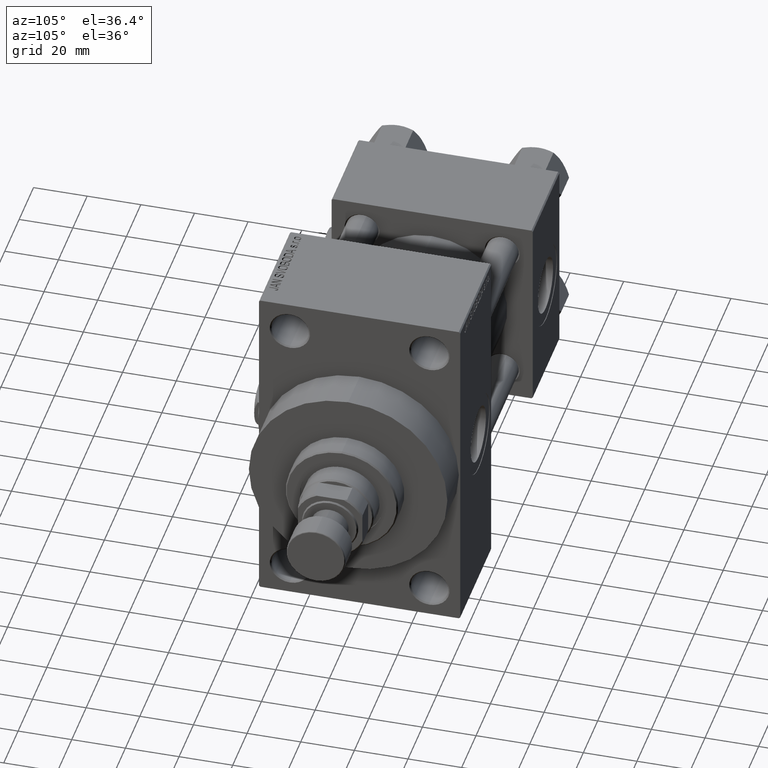
[diagram: clean part render]
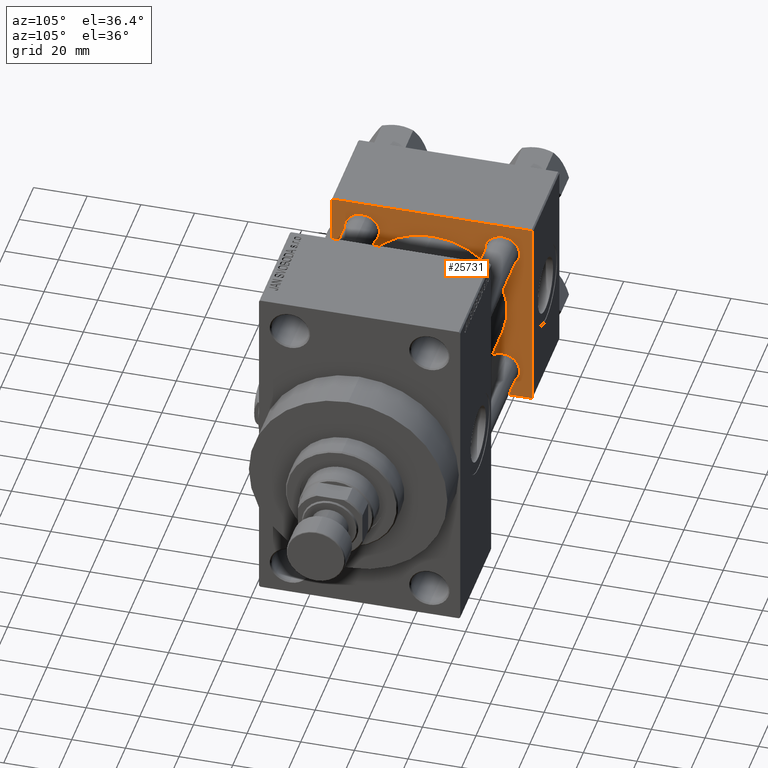
[diagram: same view with one face highlighted and labeled with its STEP entity id]
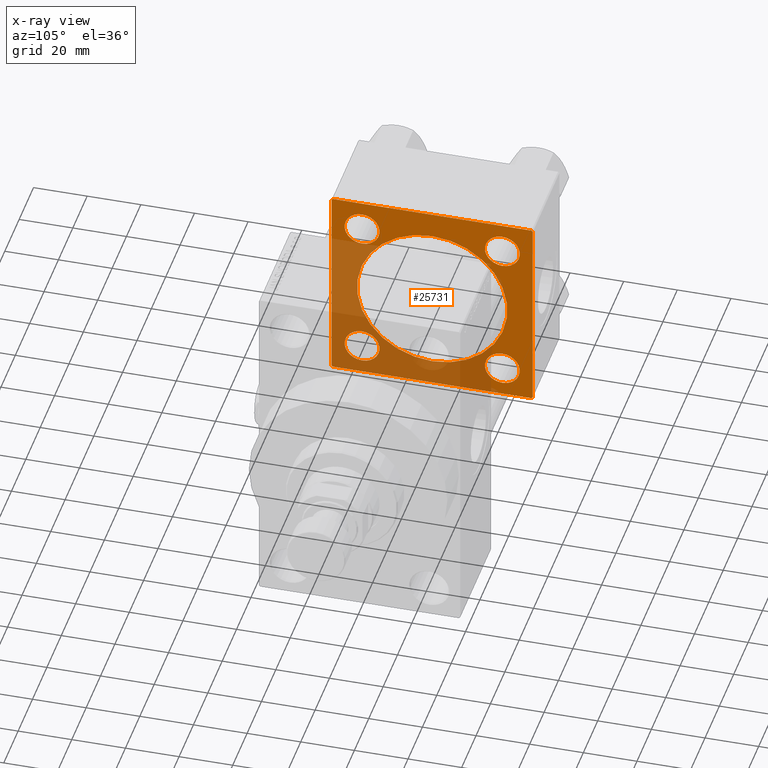
[diagram: x-ray of the same camera — body ghosted, the highlighted face saturated]
A machine part, auxiliary view. The second image highlights one B-rep face of the part: STEP entity #25731.
The next image is the same camera in x-ray: the body ghosted, the highlighted face saturated — about 44% of this face is hidden behind the body in this view.
In plain terms, the highlighted planar face has unit normal (-1, 0, 0).
Its self-contained STEP definition (entity closure, byte-faithful):
#28 = DIRECTION ( 'NONE',  ( 0.000000000000000000, 0.000000000000000000, 1.000000000000000000 ) ) ;
#78 = ORIENTED_EDGE ( 'NONE', *, *, #10707, .T. ) ;
#193 = VERTEX_POINT ( 'NONE', #20926 ) ;
#374 = VECTOR ( 'NONE', #31407, 1000.000000000000000 ) ;
#1190 = CARTESIAN_POINT ( 'NONE',  ( 37.00000000000000000, -26.14999999999999147, -26.15000000000000924 ) ) ;
#2175 = CARTESIAN_POINT ( 'NONE',  ( 37.00000000000000000, -26.14999999999999147, 19.64999999999994529 ) ) ;
#2512 = FACE_BOUND ( 'NONE', #25449, .T. ) ;
#2798 = CIRCLE ( 'NONE', #9199, 6.500000000000002665 ) ;
#2936 = EDGE_CURVE ( 'NONE', #27502, #19138, #23451, .T. ) ;
#3660 = EDGE_CURVE ( 'NONE', #13550, #10630, #48383, .T. ) ;
#3735 = CARTESIAN_POINT ( 'NONE',  ( 37.00000000000000000, 0.000000000000000000, 0.000000000000000000 ) ) ;
#3979 = FACE_BOUND ( 'NONE', #37839, .T. ) ;
#4099 = CARTESIAN_POINT ( 'NONE',  ( 37.00000000000000000, 36.99999999999997868, -37.50000000000000000 ) ) ;
#4154 = CARTESIAN_POINT ( 'NONE',  ( 37.00000000000000000, -37.00000000000002132, -37.50000000000000711 ) ) ;
#4182 = CIRCLE ( 'NONE', #41135, 28.00000000000000000 ) ;
#4608 = DIRECTION ( 'NONE',  ( 0.000000000000000000, 0.000000000000000000, -1.000000000000000000 ) ) ;
#4701 = EDGE_CURVE ( 'NONE', #36920, #22623, #48905, .T. ) ;
#4990 = DIRECTION ( 'NONE',  ( -0.000000000000000000, 0.7071067811865474617, 0.7071067811865474617 ) ) ;
#5186 = ORIENTED_EDGE ( 'NONE', *, *, #19291, .F. ) ;
#5329 = ORIENTED_EDGE ( 'NONE', *, *, #38139, .T. ) ;
#5738 = CIRCLE ( 'NONE', #30598, 28.00000000000000000 ) ;
#5908 = CARTESIAN_POINT ( 'NONE',  ( 37.00000000000000000, -37.50000000000000711, 36.99999999999999289 ) ) ;
#6911 = EDGE_LOOP ( 'NONE', ( #26663, #31911, #5186, #10807, #39083, #35533, #46557, #78 ) ) ;
#7548 = ORIENTED_EDGE ( 'NONE', *, *, #31475, .T. ) ;
#8831 = ORIENTED_EDGE ( 'NONE', *, *, #42212, .T. ) ;
#9199 = AXIS2_PLACEMENT_3D ( 'NONE', #31308, #46652, #38374 ) ;
#9416 = DIRECTION ( 'NONE',  ( 0.000000000000000000, 0.000000000000000000, 1.000000000000000000 ) ) ;
#9926 = AXIS2_PLACEMENT_3D ( 'NONE', #15358, #41554, #45799 ) ;
#9987 = VERTEX_POINT ( 'NONE', #32030 ) ;
#10630 = VERTEX_POINT ( 'NONE', #30065 ) ;
#10707 = EDGE_CURVE ( 'NONE', #36265, #28152, #17425, .T. ) ;
#10788 = FACE_BOUND ( 'NONE', #46650, .T. ) ;
#10807 = ORIENTED_EDGE ( 'NONE', *, *, #2936, .T. ) ;
#10817 = DIRECTION ( 'NONE',  ( 1.000000000000000000, -0.000000000000000000, 0.000000000000000000 ) ) ;
#11246 = CIRCLE ( 'NONE', #24123, 6.500000000000057732 ) ;
#11982 = DIRECTION ( 'NONE',  ( 0.000000000000000000, 0.000000000000000000, 1.000000000000000000 ) ) ;
#12075 = CARTESIAN_POINT ( 'NONE',  ( 37.00000000000000000, -2.602085213965210642E-15, 0.000000000000000000 ) ) ;
#13451 = ORIENTED_EDGE ( 'NONE', *, *, #29246, .T. ) ;
#13512 = CARTESIAN_POINT ( 'NONE',  ( 37.00000000000000000, 37.49999999999999289, -36.99999999999998579 ) ) ;
#13550 = VERTEX_POINT ( 'NONE', #2175 ) ;
#14151 = VERTEX_POINT ( 'NONE', #22404 ) ;
#14155 = DIRECTION ( 'NONE',  ( 0.000000000000000000, 9.251858538542971581E-17, -1.000000000000000000 ) ) ;
#14398 = CARTESIAN_POINT ( 'NONE',  ( 37.00000000000000000, -37.50000000000000711, 37.49999999999999289 ) ) ;
#14439 = DIRECTION ( 'NONE',  ( -0.000000000000000000, -0.7071067811865474617, -0.7071067811865474617 ) ) ;
#14592 = CARTESIAN_POINT ( 'NONE',  ( 37.00000000000000000, -2.602085213965210642E-15, 0.000000000000000000 ) ) ;
#14927 = CIRCLE ( 'NONE', #37393, 6.500000000000057732 ) ;
#15358 = CARTESIAN_POINT ( 'NONE',  ( 37.00000000000000000, -26.14999999999999147, 26.15000000000000924 ) ) ;
#15362 = EDGE_CURVE ( 'NONE', #9987, #48597, #11246, .T. ) ;
#16094 = EDGE_CURVE ( 'NONE', #19138, #36920, #26382, .T. ) ;
#16202 = VECTOR ( 'NONE', #4990, 1000.000000000000114 ) ;
#16382 = DIRECTION ( 'NONE',  ( -1.000000000000000000, 0.000000000000000000, -0.000000000000000000 ) ) ;
#16518 = DIRECTION ( 'NONE',  ( -1.000000000000000000, 0.000000000000000000, -0.000000000000000000 ) ) ;
#16725 = EDGE_CURVE ( 'NONE', #26696, #34529, #5738, .T. ) ;
#16859 = CARTESIAN_POINT ( 'NONE',  ( 37.00000000000000000, 26.14999999999999858, 26.15000000000000213 ) ) ;
#17080 = VECTOR ( 'NONE', #14439, 1000.000000000000114 ) ;
#17425 = LINE ( 'NONE', #44078, #39223 ) ;
#17695 = EDGE_CURVE ( 'NONE', #22623, #36265, #33268, .T. ) ;
#17783 = CARTESIAN_POINT ( 'NONE',  ( 37.00000000000000000, -2.602085213965210642E-15, 28.00000000000000000 ) ) ;
#18826 = EDGE_CURVE ( 'NONE', #34529, #26696, #4182, .T. ) ;
#19138 = VERTEX_POINT ( 'NONE', #21835 ) ;
#19291 = EDGE_CURVE ( 'NONE', #27502, #37601, #31011, .T. ) ;
#19683 = CARTESIAN_POINT ( 'NONE',  ( 37.00000000000000000, 36.99999999999999289, 37.50000000000000000 ) ) ;
#19689 = CARTESIAN_POINT ( 'NONE',  ( 37.00000000000000000, -37.00000000000000711, 37.49999999999999289 ) ) ;
#19930 = DIRECTION ( 'NONE',  ( 0.000000000000000000, -0.7071067811865474617, 0.7071067811865474617 ) ) ;
#20352 = CIRCLE ( 'NONE', #9926, 6.500000000000064837 ) ;
#20546 = EDGE_CURVE ( 'NONE', #32265, #48975, #24329, .T. ) ;
#20926 = CARTESIAN_POINT ( 'NONE',  ( 37.00000000000000000, 26.14999999999999858, -19.65000000000000213 ) ) ;
#20932 = CARTESIAN_POINT ( 'NONE',  ( 37.00000000000000000, 8.269258236473776482E-16, -28.00000000000000000 ) ) ;
#21688 = EDGE_CURVE ( 'NONE', #28458, #37601, #30895, .T. ) ;
#21835 = CARTESIAN_POINT ( 'NONE',  ( 37.00000000000000000, 36.99999999999999289, 37.50000000000000000 ) ) ;
#21855 = VECTOR ( 'NONE', #4608, 1000.000000000000000 ) ;
#22404 = CARTESIAN_POINT ( 'NONE',  ( 37.00000000000000000, 26.14999999999999858, -32.65000000000000568 ) ) ;
#22623 = VERTEX_POINT ( 'NONE', #39782 ) ;
#22640 = DIRECTION ( 'NONE',  ( 0.000000000000000000, 0.000000000000000000, 1.000000000000000000 ) ) ;
#22845 = DIRECTION ( 'NONE',  ( 0.000000000000000000, -1.000000000000000000, -9.251858538542971581E-17 ) ) ;
#23145 = CARTESIAN_POINT ( 'NONE',  ( 37.00000000000000000, 37.49999999999999289, -37.50000000000000000 ) ) ;
#23451 = LINE ( 'NONE', #19683, #35482 ) ;
#24034 = EDGE_LOOP ( 'NONE', ( #8831, #7548 ) ) ;
#24123 = AXIS2_PLACEMENT_3D ( 'NONE', #1190, #16518, #11982 ) ;
#24212 = DIRECTION ( 'NONE',  ( 0.000000000000000000, 0.000000000000000000, 1.000000000000000000 ) ) ;
#24329 = CIRCLE ( 'NONE', #34647, 6.500000000000002665 ) ;
#24434 = EDGE_LOOP ( 'NONE', ( #34735, #13451 ) ) ;
#25449 = EDGE_LOOP ( 'NONE', ( #43963, #40443 ) ) ;
#25731 = ADVANCED_FACE ( 'NONE', ( #2512, #33920, #10788, #37705, #3979, #46224 ), #41488, .F. ) ;
#26328 = CARTESIAN_POINT ( 'NONE',  ( 37.00000000000000000, -37.50000000000000000, -37.00000000000003553 ) ) ;
#26382 = LINE ( 'NONE', #29893, #31379 ) ;
#26636 = DIRECTION ( 'NONE',  ( -1.000000000000000000, 0.000000000000000000, -0.000000000000000000 ) ) ;
#26663 = ORIENTED_EDGE ( 'NONE', *, *, #43631, .F. ) ;
#26696 = VERTEX_POINT ( 'NONE', #17783 ) ;
#27502 = VERTEX_POINT ( 'NONE', #37035 ) ;
#27891 = CARTESIAN_POINT ( 'NONE',  ( 37.00000000000000000, 37.49999999999999289, -36.99999999999998579 ) ) ;
#27986 = CARTESIAN_POINT ( 'NONE',  ( 37.00000000000000000, -26.14999999999999147, 26.15000000000000924 ) ) ;
#28152 = VERTEX_POINT ( 'NONE', #4154 ) ;
#28458 = VERTEX_POINT ( 'NONE', #4099 ) ;
#28830 = DIRECTION ( 'NONE',  ( 0.000000000000000000, 0.000000000000000000, 1.000000000000000000 ) ) ;
#29106 = AXIS2_PLACEMENT_3D ( 'NONE', #27986, #39539, #24212 ) ;
#29181 = AXIS2_PLACEMENT_3D ( 'NONE', #3735, #26636, #34413 ) ;
#29246 = EDGE_CURVE ( 'NONE', #48975, #32265, #2798, .T. ) ;
#29282 = CARTESIAN_POINT ( 'NONE',  ( 37.00000000000000000, 26.14999999999999858, -26.15000000000000213 ) ) ;
#29893 = CARTESIAN_POINT ( 'NONE',  ( 37.00000000000000000, 37.49999999999999289, 37.50000000000000000 ) ) ;
#30065 = CARTESIAN_POINT ( 'NONE',  ( 37.00000000000000000, -26.14999999999999147, 32.65000000000007674 ) ) ;
#30151 = CIRCLE ( 'NONE', #42991, 6.500000000000002665 ) ;
#30598 = AXIS2_PLACEMENT_3D ( 'NONE', #12075, #38264, #28 ) ;
#30895 = LINE ( 'NONE', #27891, #16202 ) ;
#31011 = LINE ( 'NONE', #42093, #21855 ) ;
#31268 = ORIENTED_EDGE ( 'NONE', *, *, #16725, .F. ) ;
#31308 = CARTESIAN_POINT ( 'NONE',  ( 37.00000000000000000, 26.14999999999999858, 26.15000000000000213 ) ) ;
#31379 = VECTOR ( 'NONE', #22845, 1000.000000000000000 ) ;
#31407 = DIRECTION ( 'NONE',  ( 0.000000000000000000, -1.000000000000000000, -9.251858538542972814E-17 ) ) ;
#31475 = EDGE_CURVE ( 'NONE', #193, #14151, #38245, .T. ) ;
#31911 = ORIENTED_EDGE ( 'NONE', *, *, #21688, .T. ) ;
#32030 = CARTESIAN_POINT ( 'NONE',  ( 37.00000000000000000, -26.14999999999999147, -19.64999999999995239 ) ) ;
#32194 = DIRECTION ( 'NONE',  ( -1.000000000000000000, 0.000000000000000000, -0.000000000000000000 ) ) ;
#32265 = VERTEX_POINT ( 'NONE', #38835 ) ;
#33268 = LINE ( 'NONE', #14398, #41098 ) ;
#33920 = FACE_BOUND ( 'NONE', #24034, .T. ) ;
#34413 = DIRECTION ( 'NONE',  ( -0.000000000000000000, 0.000000000000000000, 1.000000000000000000 ) ) ;
#34529 = VERTEX_POINT ( 'NONE', #20932 ) ;
#34647 = AXIS2_PLACEMENT_3D ( 'NONE', #16859, #32194, #40238 ) ;
#34735 = ORIENTED_EDGE ( 'NONE', *, *, #20546, .T. ) ;
#35482 = VECTOR ( 'NONE', #19930, 1000.000000000000114 ) ;
#35533 = ORIENTED_EDGE ( 'NONE', *, *, #4701, .T. ) ;
#35966 = CARTESIAN_POINT ( 'NONE',  ( 37.00000000000000000, -26.14999999999999147, -32.65000000000006963 ) ) ;
#36265 = VERTEX_POINT ( 'NONE', #26328 ) ;
#36920 = VERTEX_POINT ( 'NONE', #19689 ) ;
#37035 = CARTESIAN_POINT ( 'NONE',  ( 37.00000000000000000, 37.49999999999999289, 37.00000000000000000 ) ) ;
#37393 = AXIS2_PLACEMENT_3D ( 'NONE', #43297, #16382, #39267 ) ;
#37426 = AXIS2_PLACEMENT_3D ( 'NONE', #29282, #43873, #9416 ) ;
#37601 = VERTEX_POINT ( 'NONE', #13512 ) ;
#37705 = FACE_BOUND ( 'NONE', #24434, .T. ) ;
#37839 = EDGE_LOOP ( 'NONE', ( #31268, #49577 ) ) ;
#38122 = ORIENTED_EDGE ( 'NONE', *, *, #3660, .T. ) ;
#38139 = EDGE_CURVE ( 'NONE', #10630, #13550, #20352, .T. ) ;
#38245 = CIRCLE ( 'NONE', #37426, 6.500000000000002665 ) ;
#38264 = DIRECTION ( 'NONE',  ( 1.000000000000000000, -0.000000000000000000, 0.000000000000000000 ) ) ;
#38374 = DIRECTION ( 'NONE',  ( 0.000000000000000000, 0.000000000000000000, 1.000000000000000000 ) ) ;
#38835 = CARTESIAN_POINT ( 'NONE',  ( 37.00000000000000000, 26.14999999999999858, 19.64999999999999858 ) ) ;
#39083 = ORIENTED_EDGE ( 'NONE', *, *, #16094, .T. ) ;
#39223 = VECTOR ( 'NONE', #48347, 1000.000000000000000 ) ;
#39267 = DIRECTION ( 'NONE',  ( 0.000000000000000000, 0.000000000000000000, 1.000000000000000000 ) ) ;
#39539 = DIRECTION ( 'NONE',  ( -1.000000000000000000, 0.000000000000000000, -0.000000000000000000 ) ) ;
#39782 = CARTESIAN_POINT ( 'NONE',  ( 37.00000000000000000, -37.50000000000000711, 36.99999999999999289 ) ) ;
#40238 = DIRECTION ( 'NONE',  ( 0.000000000000000000, 0.000000000000000000, 1.000000000000000000 ) ) ;
#40443 = ORIENTED_EDGE ( 'NONE', *, *, #15362, .T. ) ;
#41098 = VECTOR ( 'NONE', #14155, 1000.000000000000000 ) ;
#41135 = AXIS2_PLACEMENT_3D ( 'NONE', #14592, #10817, #22640 ) ;
#41488 = PLANE ( 'NONE',  #29181 ) ;
#41554 = DIRECTION ( 'NONE',  ( -1.000000000000000000, 0.000000000000000000, -0.000000000000000000 ) ) ;
#42093 = CARTESIAN_POINT ( 'NONE',  ( 37.00000000000000000, 37.49999999999999289, 37.50000000000000000 ) ) ;
#42212 = EDGE_CURVE ( 'NONE', #14151, #193, #30151, .T. ) ;
#42250 = LINE ( 'NONE', #23145, #374 ) ;
#42549 = EDGE_CURVE ( 'NONE', #48597, #9987, #14927, .T. ) ;
#42991 = AXIS2_PLACEMENT_3D ( 'NONE', #43913, #44399, #28830 ) ;
#43297 = CARTESIAN_POINT ( 'NONE',  ( 37.00000000000000000, -26.14999999999999147, -26.15000000000000924 ) ) ;
#43332 = CARTESIAN_POINT ( 'NONE',  ( 37.00000000000000000, 26.14999999999999858, 32.65000000000001279 ) ) ;
#43631 = EDGE_CURVE ( 'NONE', #28458, #28152, #42250, .T. ) ;
#43873 = DIRECTION ( 'NONE',  ( -1.000000000000000000, 0.000000000000000000, -0.000000000000000000 ) ) ;
#43913 = CARTESIAN_POINT ( 'NONE',  ( 37.00000000000000000, 26.14999999999999858, -26.15000000000000213 ) ) ;
#43963 = ORIENTED_EDGE ( 'NONE', *, *, #42549, .T. ) ;
#44078 = CARTESIAN_POINT ( 'NONE',  ( 37.00000000000000000, -37.00000000000002132, -37.50000000000000711 ) ) ;
#44399 = DIRECTION ( 'NONE',  ( -1.000000000000000000, 0.000000000000000000, -0.000000000000000000 ) ) ;
#45799 = DIRECTION ( 'NONE',  ( 0.000000000000000000, 0.000000000000000000, 1.000000000000000000 ) ) ;
#46224 = FACE_OUTER_BOUND ( 'NONE', #6911, .T. ) ;
#46557 = ORIENTED_EDGE ( 'NONE', *, *, #17695, .T. ) ;
#46650 = EDGE_LOOP ( 'NONE', ( #38122, #5329 ) ) ;
#46652 = DIRECTION ( 'NONE',  ( -1.000000000000000000, 0.000000000000000000, -0.000000000000000000 ) ) ;
#48347 = DIRECTION ( 'NONE',  ( 0.000000000000000000, 0.7071067811865524577, -0.7071067811865426878 ) ) ;
#48383 = CIRCLE ( 'NONE', #29106, 6.500000000000064837 ) ;
#48597 = VERTEX_POINT ( 'NONE', #35966 ) ;
#48905 = LINE ( 'NONE', #5908, #17080 ) ;
#48975 = VERTEX_POINT ( 'NONE', #43332 ) ;
#49577 = ORIENTED_EDGE ( 'NONE', *, *, #18826, .F. ) ;